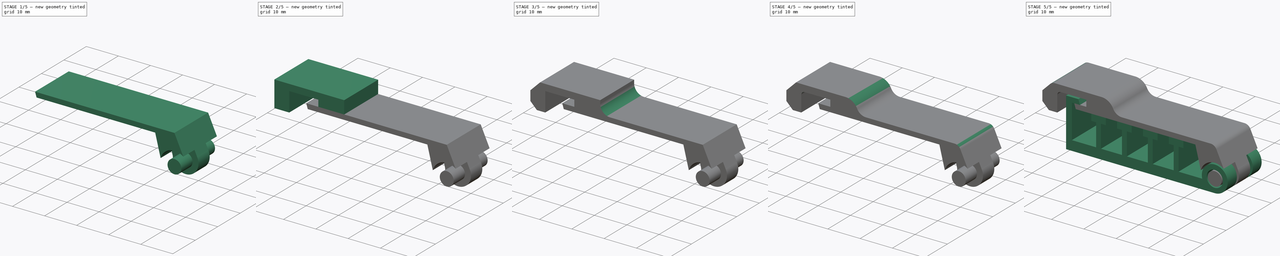
[diagram: build sequence overview — one tinted view per stage of 5, left to right]
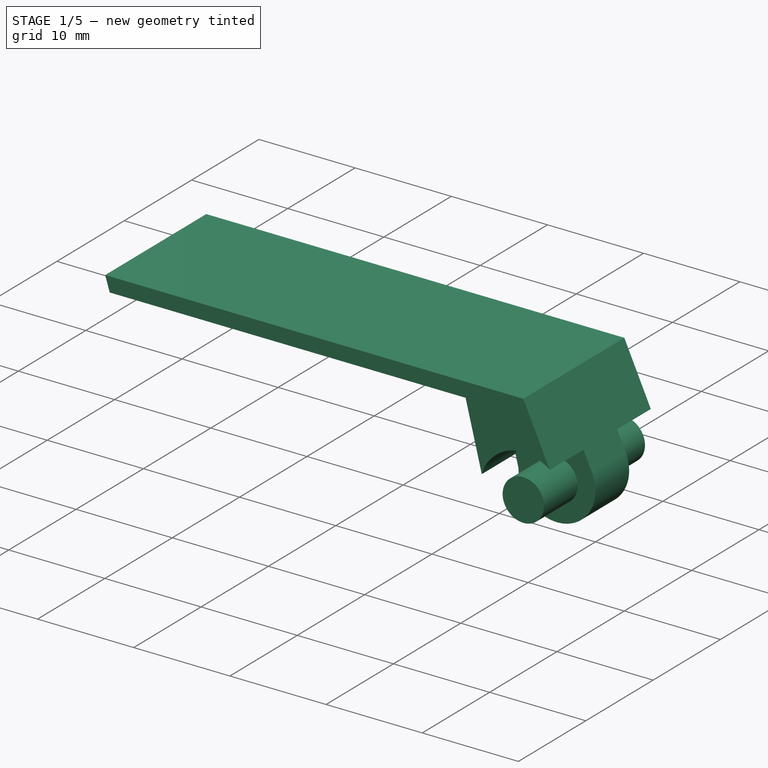
[diagram: stage 1 of 5 — iso view after this stage's code; geometry added in this stage tinted green]
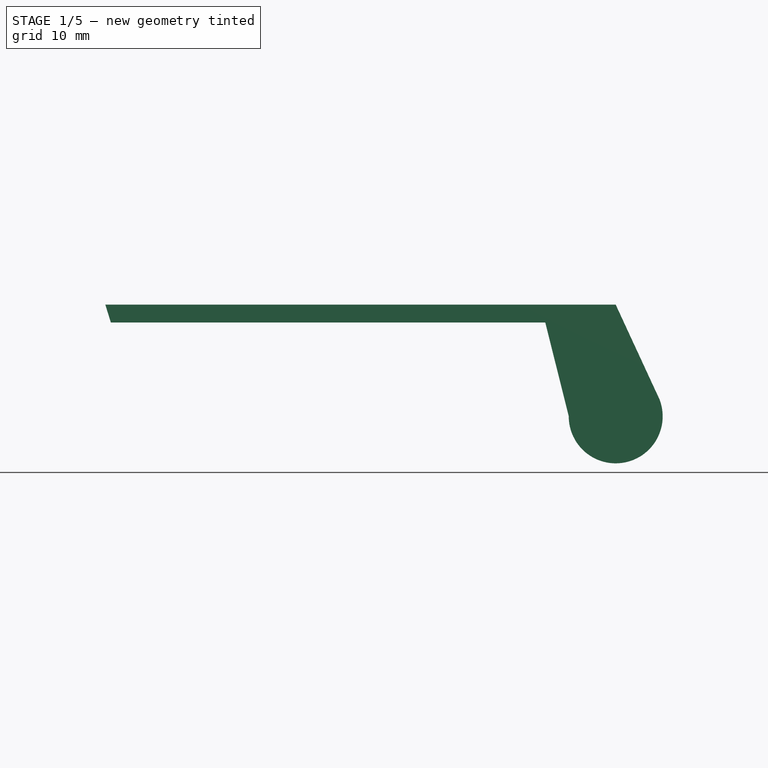
[diagram: stage 1 of 5 — front view after this stage's code; geometry added in this stage tinted green]
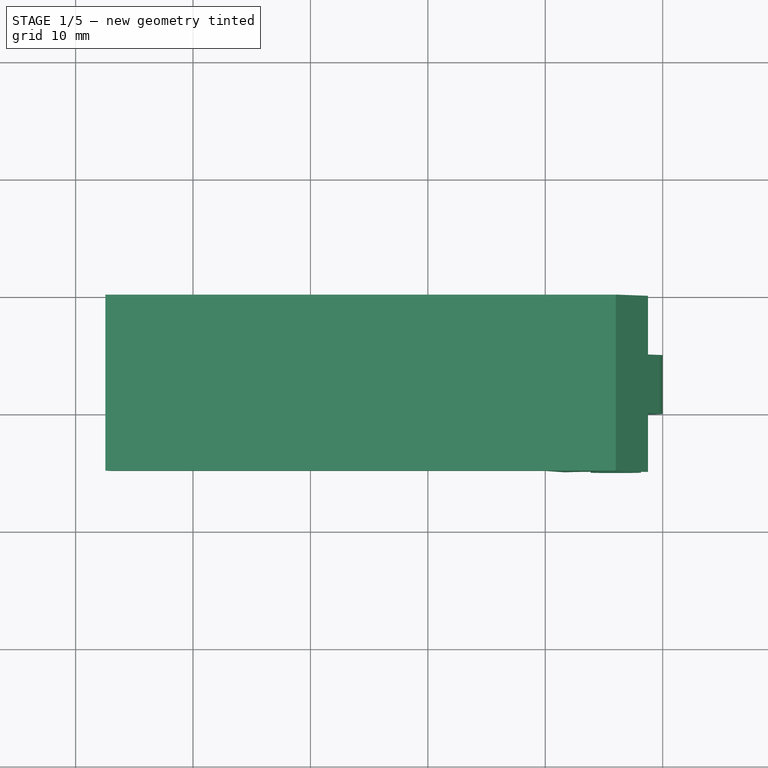
[diagram: stage 1 of 5 — top view after this stage's code; geometry added in this stage tinted green]
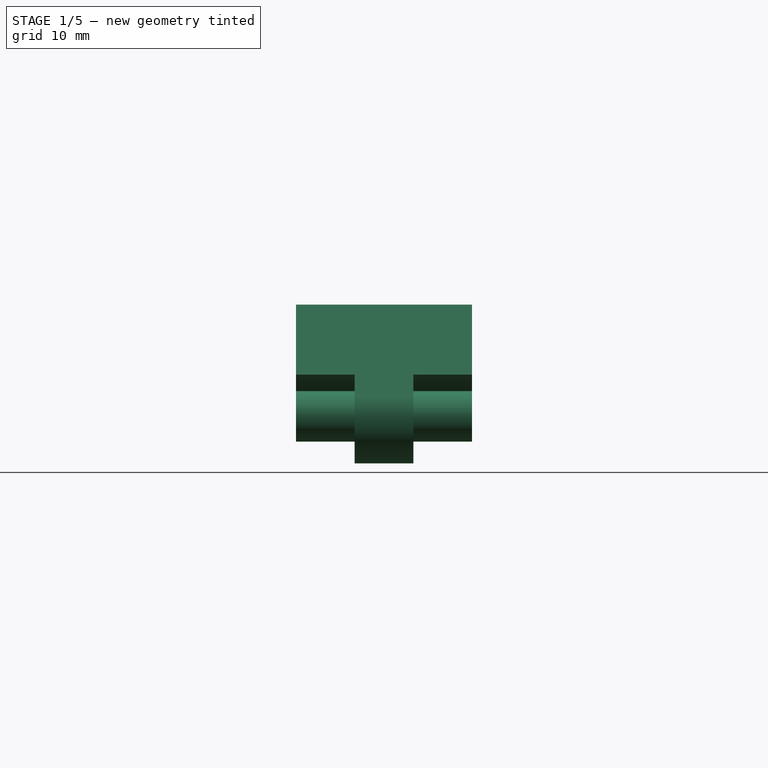
[diagram: stage 1 of 5 — right view after this stage's code; geometry added in this stage tinted green]
FCSTD DOCUMENT  (FreeCAD 1.1R20260325 (Git shallow))
Label: cable comb x5
License: All rights reserved
LicenseURL: https://en.wikipedia.org/wiki/All_rights_reserved
objects: Sketcher::SketchObject×8, PartDesign::Pad×5, PartDesign::Fillet×5, PartDesign::Pocket×3, PartDesign::Body×2, App::Point×2, PartDesign::Chamfer×2, PartDesign::ShapeBinder×1
note: 64 computed .brp shape members not serialized (recipe doc carries the construction recipe); baked Part::Feature solids carry a one-line shape summary decoded from their .brp

FEATURE [PartDesign::Body] Body
  AllowCompound = false
  Group = -> [Sketch,Pad,Sketch001,Pocket]
  Origin = -> Origin
  Tip = -> Pocket
FEATURE [PartDesign::ShapeBinder] CopyPocket
  Placement = pos=(0,-15,3.3e-15) rot=(0,0,1;0rad)
  TraceSupport = false
FEATURE [Sketcher::SketchObject] Sketch002
  ArcFitTolerance = 1e-06
  AttachmentSupport = -> [CopyPocket]
  ExternalTypes = [0]
  FullyConstrained = false
  MakeInternals = false
  MapMode = 5
  Placement = pos=(0,-15,3.3e-15) rot=(1,0,0;1.5708rad)
  _ExternalGeoVersion = 0
  sketch-geometry (6):
    g0: ArcOfCircle CenterX=-4 CenterY=4 CenterZ=0 NormalX=0 NormalY=0 NormalZ=1 AngleXU=0 Radius=4 StartAngle=3.1379 EndAngle=6.77347
    g1: LineSegment StartX=-7.99997 StartY=4.01475 StartZ=0 EndX=-10 EndY=12 EndZ=0
    g2: LineSegment StartX=-10 StartY=12 StartZ=0 EndX=-47 EndY=12 EndZ=0
    g3: LineSegment StartX=-47 StartY=12 StartZ=0 EndX=-47.4698 EndY=13.5143 EndZ=0
    g4: LineSegment StartX=-47.4698 StartY=13.5143 StartZ=0 EndX=-4 EndY=13.5143 EndZ=0
    g5: LineSegment StartX=-4 StartY=13.5143 StartZ=0 EndX=-0.471207 EndY=5.88351 EndZ=0
  constraints (9):
    c: Diameter(g0) = 8
    c: Coincident(g2,g1)
    c: Horizontal(g2)
    c: Coincident(g3,g2)
    c: Coincident(g4,g3)
    c: Coincident(g5,g4)
    c: Horizontal(g4)
    c: Coincident(g0,g5)
    c: Coincident(g0,g1)
FEATURE [PartDesign::Pad] Pad001
  Direction = (0,-1,2e-16)
  Length = 15
  Length2 = 10
  Placement = pos=(0,-15,3.3e-15) rot=(0,0,1;0rad)
  Profile = -> Sketch002
  ReferenceAxis = -> Sketch002 [N_Axis]
  Refine = true
  Reversed = true
  SideType = 0
  Suppressed = false
  Type = 0
  Type2 = 0
FEATURE [Sketcher::SketchObject] Sketch003
  ArcFitTolerance = 1e-06
  AttachmentSupport = -> [Pad001]
  ExternalTypes = [0]
  FullyConstrained = false
  MakeInternals = false
  MapMode = 5
  Placement = pos=(0,-15,3.3e-15) rot=(1,0,0;1.5708rad)
  _ExternalGeoVersion = 0
  sketch-geometry (2):
    g0: Circle CenterX=-4 CenterY=4 CenterZ=0 NormalX=0 NormalY=0 NormalZ=1 AngleXU=0 Radius=2.15
    g1: Circle CenterX=-4 CenterY=4 CenterZ=0 NormalX=0 NormalY=0 NormalZ=1 AngleXU=0 Radius=4.5
  constraints (3):
    c: Diameter(g0) = 4.3
    c: Coincident(g1,g0)
    c: Diameter(g1) = 9
FEATURE [PartDesign::Pocket] Pocket001
  BaseFeature = -> Pad001
  Direction = (0,1,-2e-16)
  Length = 5
  Length2 = 5
  Placement = pos=(0,-15,3.3e-15) rot=(0,0,1;0rad)
  Profile = -> Sketch003
  ReferenceAxis = -> Sketch003 [N_Axis]
  Refine = true
  SideType = 0
  Suppressed = false
  Type = 0
  Type2 = 0
FEATURE [Sketcher::SketchObject] Sketch004
  ArcFitTolerance = 1e-06
  AttachmentSupport = -> [Pocket001]
  ExternalTypes = [0]
  FullyConstrained = false
  MakeInternals = false
  MapMode = 5
  Placement = pos=(0,0,-1e-16) rot=(0,0.707107,0.707107;3.14159rad)
  _ExternalGeoVersion = 0
  sketch-geometry (2):
    g0: Circle CenterX=4 CenterY=4 CenterZ=0 NormalX=0 NormalY=0 NormalZ=1 AngleXU=0 Radius=2.15
    g1: Circle CenterX=4 CenterY=4 CenterZ=0 NormalX=0 NormalY=0 NormalZ=1 AngleXU=0 Radius=4.5
  constraints (3):
    c: Diameter(g0) = 4.3
    c: Diameter(g1) = 9
    c: Coincident(g1,g0)
FEATURE [PartDesign::Pocket] Pocket002
  BaseFeature = -> Pocket001
  Direction = (0,-1,2e-16)
  Length = 5
  Length2 = 5
  Placement = pos=(0,-15,3.3e-15) rot=(0,0,1;0rad)
  Profile = -> Sketch004
  ReferenceAxis = -> Sketch004 [N_Axis]
  Refine = true
  SideType = 0
  Suppressed = false
  Type = 0
  Type2 = 0
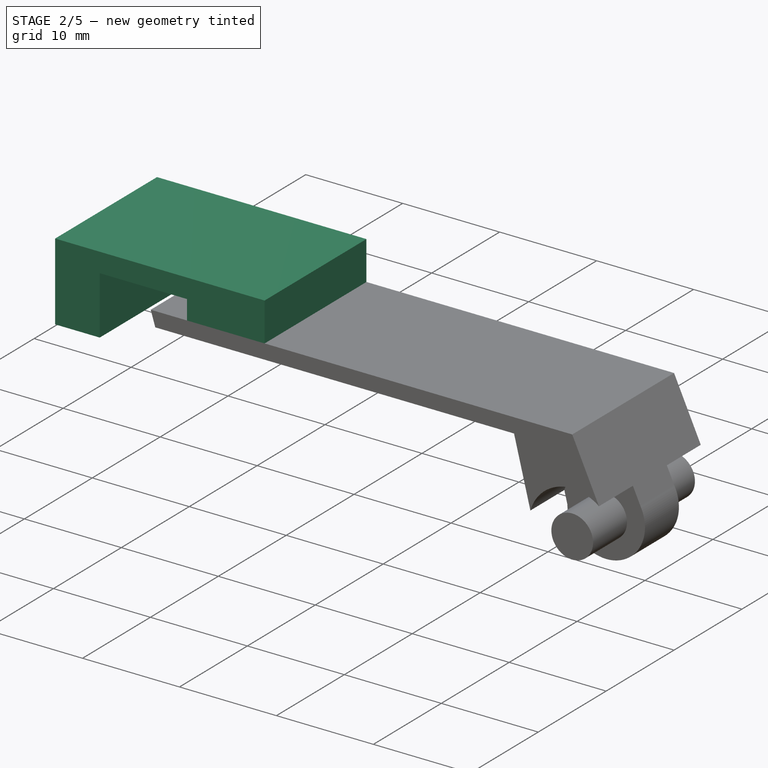
[diagram: stage 2 of 5 — iso view after this stage's code; geometry added in this stage tinted green]
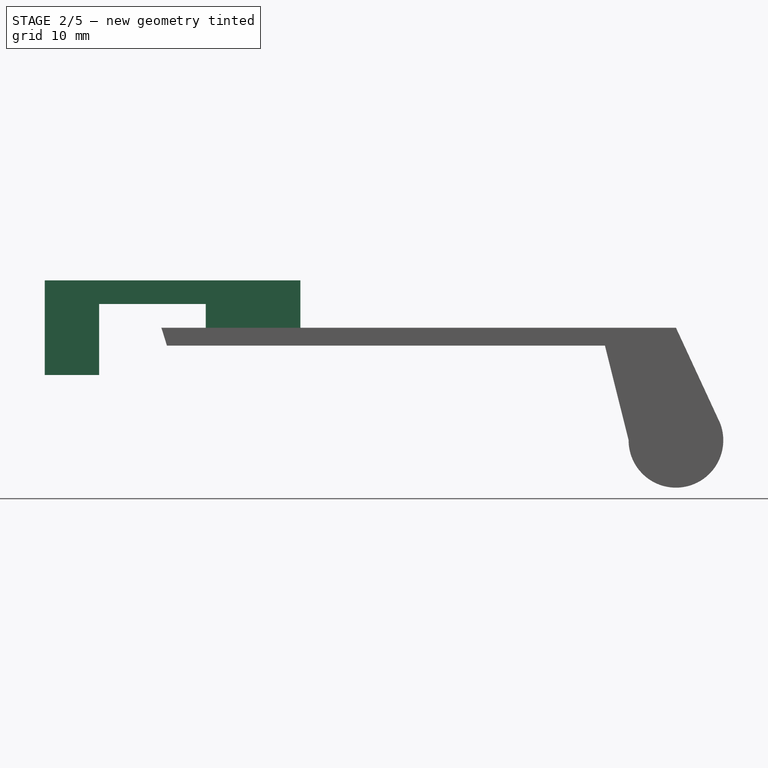
[diagram: stage 2 of 5 — front view after this stage's code; geometry added in this stage tinted green]
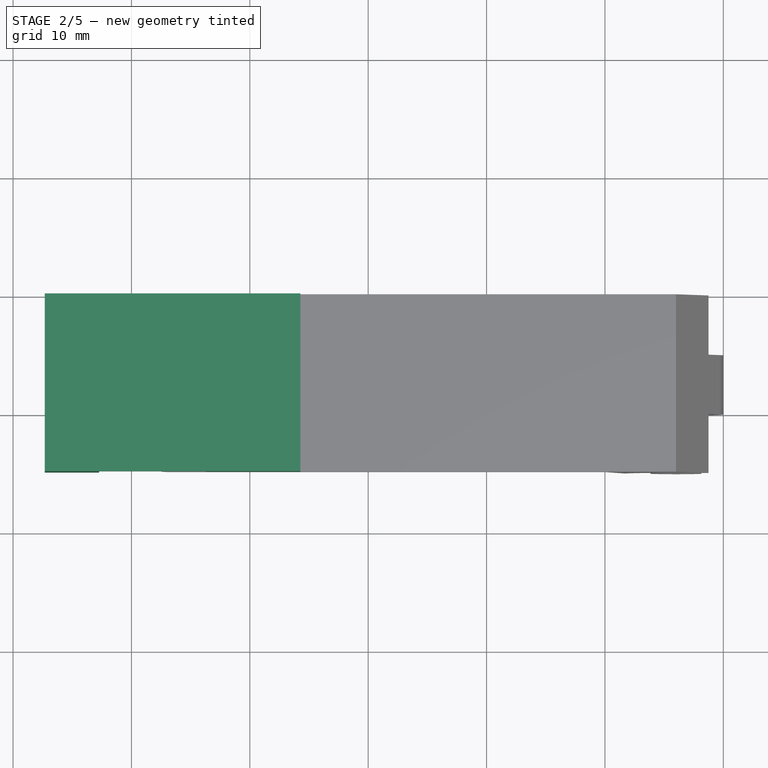
[diagram: stage 2 of 5 — top view after this stage's code; geometry added in this stage tinted green]
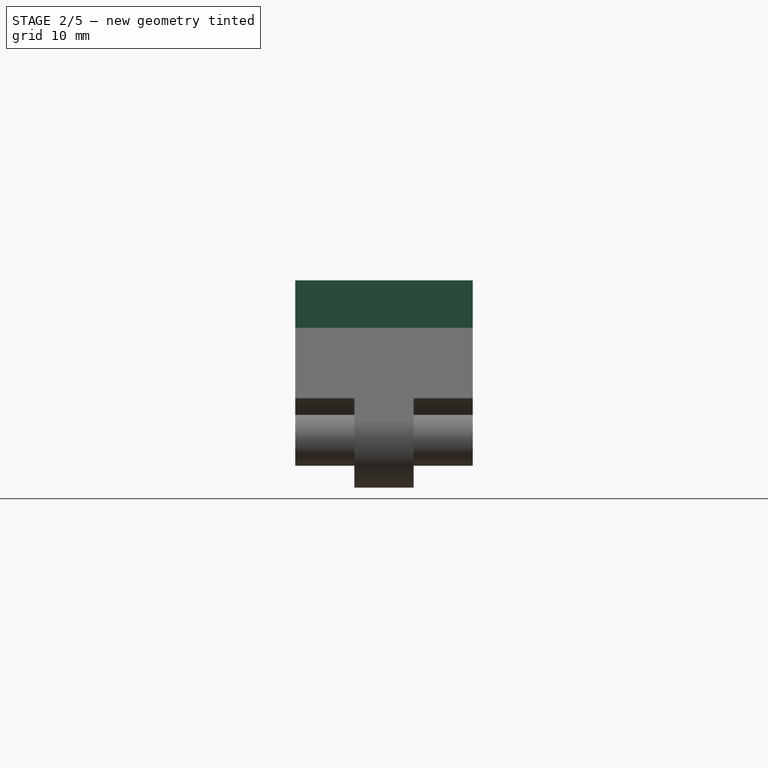
[diagram: stage 2 of 5 — right view after this stage's code; geometry added in this stage tinted green]
FEATURE [App::Point] Origin002  label="Origin"
  Role = Origin
FEATURE [App::Point] Origin003  label="Origin"
  Role = Origin
FEATURE [Sketcher::SketchObject] Sketch005
  ArcFitTolerance = 1e-06
  AttachmentSupport = -> [Pocket002]
  ExternalTypes = [0]
  FullyConstrained = false
  MakeInternals = false
  MapMode = 5
  Placement = pos=(0,-15,13.5143) rot=(0,0,1;0rad)
  _ExternalGeoVersion = 1
  sketch-geometry (4):
    g0: LineSegment StartX=-35.7267 StartY=0 StartZ=0 EndX=-35.7267 EndY=15 EndZ=0
    g1: LineSegment StartX=-35.7267 StartY=15 StartZ=0 EndX=-43.7267 EndY=15 EndZ=0
    g2: LineSegment StartX=-43.7267 StartY=15 StartZ=0 EndX=-43.7267 EndY=0 EndZ=0
    g3: LineSegment StartX=-43.7267 StartY=0 StartZ=0 EndX=-35.7267 EndY=0 EndZ=0
  constraints (11):
    c: Coincident(g0,g1)
    c: Coincident(g1,g2)
    c: Coincident(g2,g3)
    c: Coincident(g3,g0)
    c: Vertical(g0)
    c: Vertical(g2)
    c: Horizontal(g1)
    c: Horizontal(g3)
    c: Distance(g0,g2) = 8
    c: Distance(g1,g3) = 15
    c: PointOnObject(g0,g-1)
FEATURE [PartDesign::Pad] Pad002
  BaseFeature = -> Pocket002
  Direction = (0,0,1)
  Length = 4
  Length2 = 10
  Placement = pos=(0,-15,3.3e-15) rot=(0,0,1;0rad)
  Profile = -> Sketch005
  ReferenceAxis = -> Sketch005 [N_Axis]
  Refine = true
  SideType = 0
  Suppressed = false
  Type = 0
  Type2 = 0
FEATURE [Sketcher::SketchObject] Sketch006
  ArcFitTolerance = 1e-06
  AttachmentSupport = -> [Pad002]
  ExternalGeometry = -> [Pad002]
  ExternalTypes = [1]
  FullyConstrained = true
  MakeInternals = false
  MapMode = 5
  Placement = pos=(-43.7267,-15,3.3e-15) rot=(0.57735,-0.57735,-0.57735;2.0944rad)
  _ExternalGeoVersion = 1
  sketch-geometry (4):
    g0: LineSegment StartX=-15 StartY=17.5143 StartZ=0 EndX=-15 EndY=15.5143 EndZ=0
    g1: LineSegment StartX=-15 StartY=15.5143 StartZ=0 EndX=-3.6e-15 EndY=15.5143 EndZ=0
    g2: LineSegment StartX=-3.6e-15 StartY=15.5143 StartZ=0 EndX=-3.6e-15 EndY=17.5143 EndZ=0
    g3: LineSegment StartX=-3.6e-15 StartY=17.5143 StartZ=0 EndX=-15 EndY=17.5143 EndZ=0
  constraints (11):
    c: Coincident(g0,g1)
    c: Coincident(g1,g2)
    c: Coincident(g2,g3)
    c: Coincident(g3,g0)
    c: Vertical(g0)
    c: Vertical(g2)
    c: Horizontal(g1)
    c: Horizontal(g3)
    c: Distance(g0,g2) = 15
    c: Distance(g1,g3) = 2
    c: Coincident(g-3,g2)
FEATURE [PartDesign::Pad] Pad003
  BaseFeature = -> Pad002
  Direction = (-1,0,0)
  Length = 9
  Length2 = 10
  Placement = pos=(0,-15,3.3e-15) rot=(0,0,1;0rad)
  Profile = -> Sketch006
  ReferenceAxis = -> Sketch006 [N_Axis]
  Refine = true
  SideType = 0
  Suppressed = false
  Type = 0
  Type2 = 0
FEATURE [Sketcher::SketchObject] Sketch007
  ArcFitTolerance = 1e-06
  AttachmentSupport = -> [Pad003]
  ExternalGeometry = -> [Pad003]
  ExternalTypes = [1,1]
  FullyConstrained = true
  MakeInternals = false
  MapMode = 5
  Placement = pos=(-52.7267,-15,3.3e-15) rot=(0.57735,-0.57735,-0.57735;2.0944rad)
  _ExternalGeoVersion = 1
  sketch-geometry (4):
    g0: LineSegment StartX=-15 StartY=17.5143 StartZ=0 EndX=-15 EndY=9.5143 EndZ=0
    g1: LineSegment StartX=-15 StartY=9.5143 StartZ=0 EndX=-3.6e-15 EndY=9.5143 EndZ=0
    g2: LineSegment StartX=-3.6e-15 StartY=9.5143 StartZ=0 EndX=-3.6e-15 EndY=17.5143 EndZ=0
    g3: LineSegment StartX=-3.6e-15 StartY=17.5143 StartZ=0 EndX=-15 EndY=17.5143 EndZ=0
  constraints (11):
    c: Coincident(g0,g1)
    c: Coincident(g1,g2)
    c: Coincident(g2,g3)
    c: Coincident(g3,g0)
    c: Vertical(g0)
    c: Vertical(g2)
    c: Horizontal(g1)
    c: Horizontal(g3)
    c: Distance(g0,g2) = 15
    c: Distance(g1,g3) = 8
    c: Coincident(g-4,g2)
FEATURE [PartDesign::Pad] Pad004
  BaseFeature = -> Pad003
  Direction = (-1,0,0)
  Length = 4.6
  Length2 = 10
  Placement = pos=(0,-15,3.3e-15) rot=(0,0,1;0rad)
  Profile = -> Sketch007
  ReferenceAxis = -> Sketch007 [N_Axis]
  Refine = true
  SideType = 0
  Suppressed = false
  Type = 0
  Type2 = 0
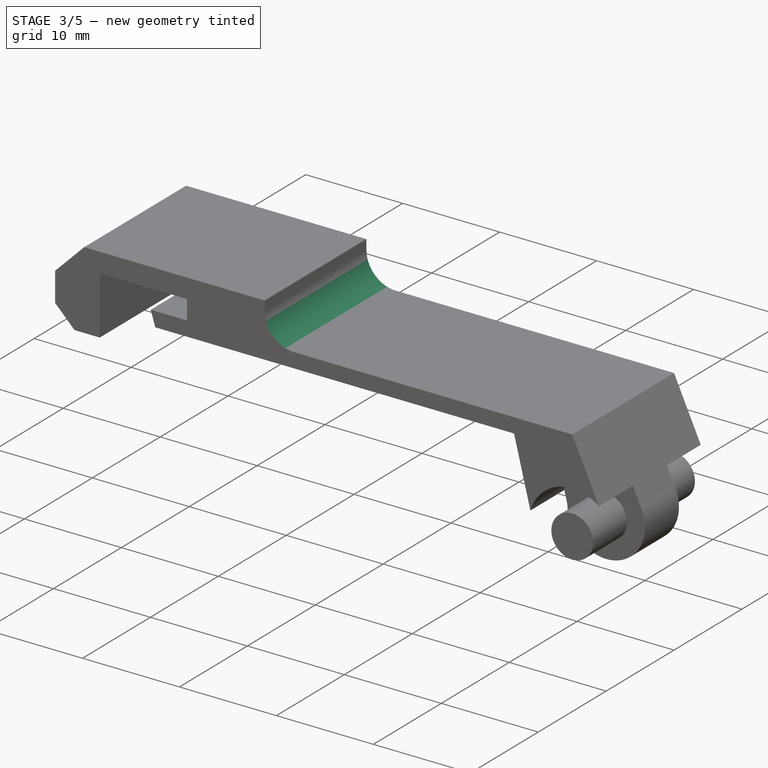
[diagram: stage 3 of 5 — iso view after this stage's code; geometry added in this stage tinted green]
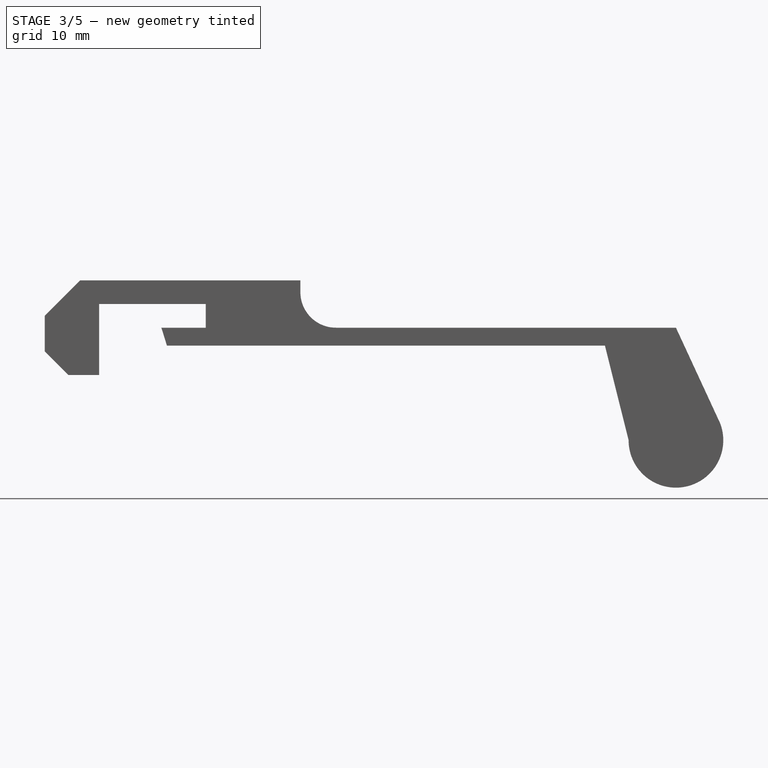
[diagram: stage 3 of 5 — front view after this stage's code; geometry added in this stage tinted green]
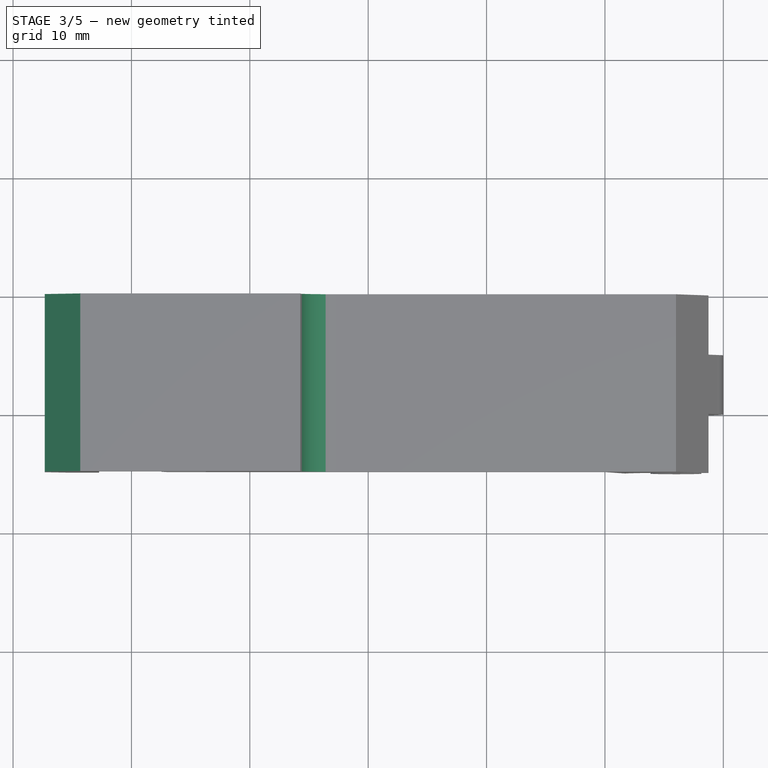
[diagram: stage 3 of 5 — top view after this stage's code; geometry added in this stage tinted green]
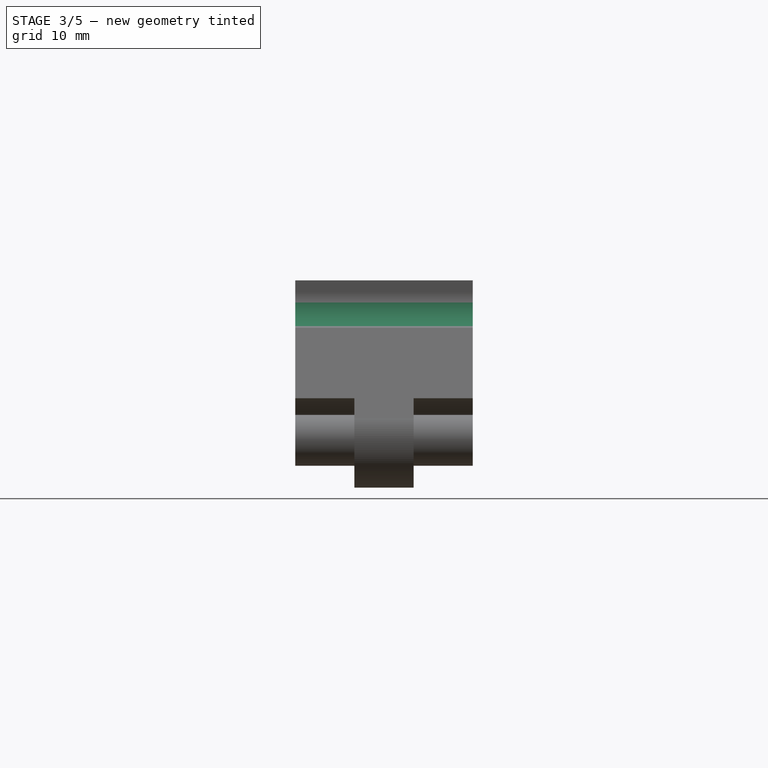
[diagram: stage 3 of 5 — right view after this stage's code; geometry added in this stage tinted green]
FEATURE [PartDesign::Chamfer] Chamfer
  Angle = 45
  Base = -> Pad004 [Edge58]
  BaseFeature = -> Pad004
  ChamferType = 0
  FlipDirection = false
  Placement = pos=(0,-15,3.3e-15) rot=(0,0,1;0rad)
  Refine = true
  Size = 3
  Size2 = 1
  SupportTransform = false
  Suppressed = false
  UseAllEdges = false
  expr: Size = 3 mm
FEATURE [PartDesign::Chamfer] Chamfer001
  Angle = 45
  Base = -> Chamfer [Edge3]
  BaseFeature = -> Chamfer
  ChamferType = 0
  FlipDirection = false
  Placement = pos=(0,-15,3.3e-15) rot=(0,0,1;0rad)
  Refine = true
  Size = 2
  Size2 = 1
  SupportTransform = false
  Suppressed = false
  UseAllEdges = false
FEATURE [PartDesign::Fillet] Fillet
  Base = -> Chamfer001 [Edge40]
  BaseFeature = -> Chamfer001
  Placement = pos=(0,-15,3.3e-15) rot=(0,0,1;0rad)
  Radius = 3
  Refine = true
  SupportTransform = false
  Suppressed = false
  UseAllEdges = false
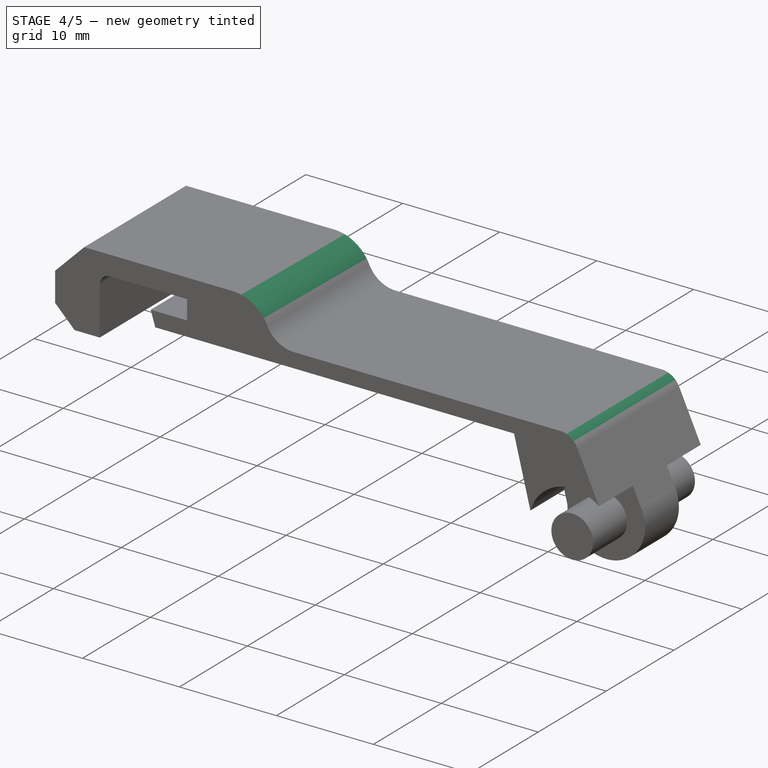
[diagram: stage 4 of 5 — iso view after this stage's code; geometry added in this stage tinted green]
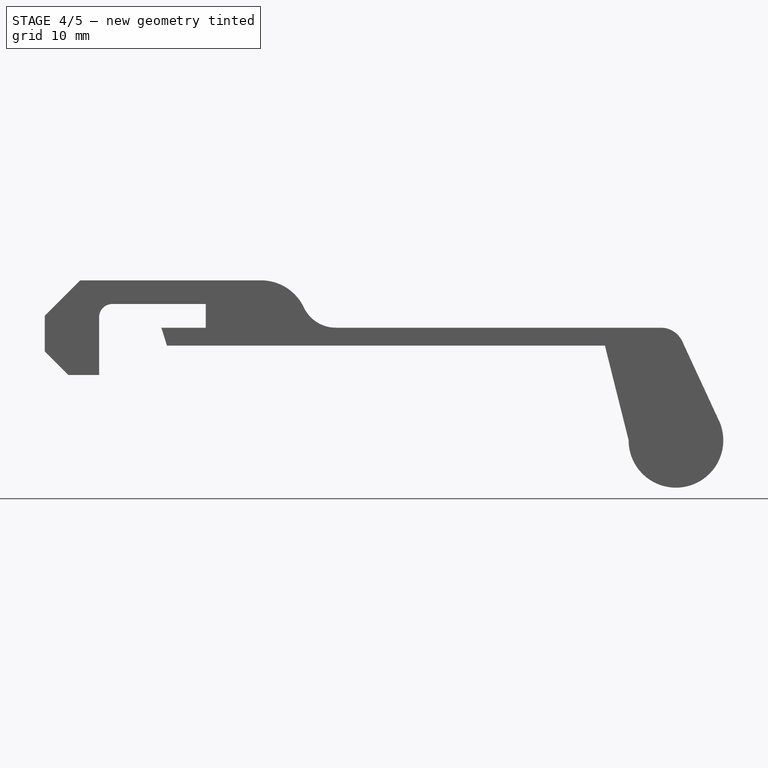
[diagram: stage 4 of 5 — front view after this stage's code; geometry added in this stage tinted green]
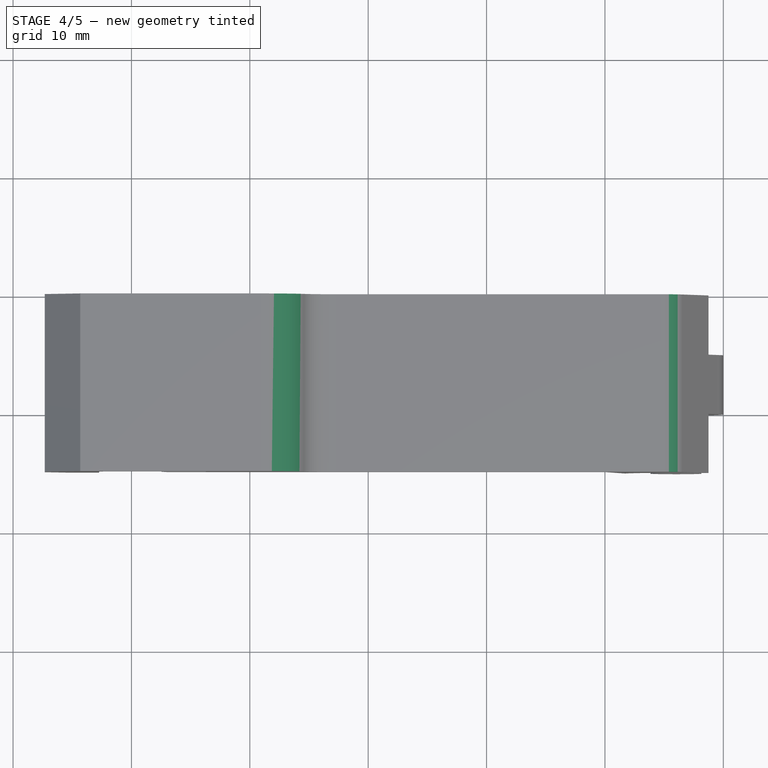
[diagram: stage 4 of 5 — top view after this stage's code; geometry added in this stage tinted green]
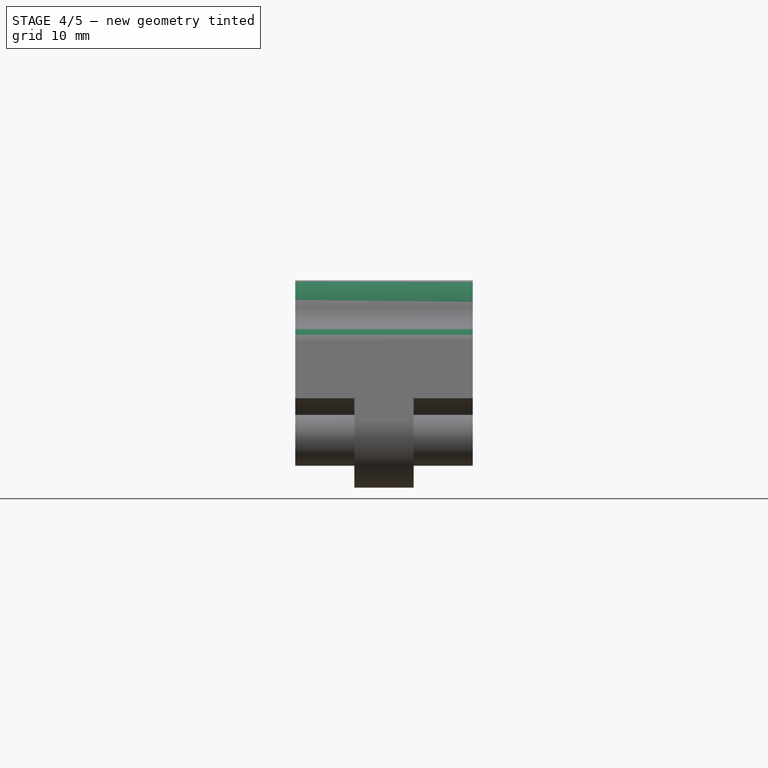
[diagram: stage 4 of 5 — right view after this stage's code; geometry added in this stage tinted green]
FEATURE [PartDesign::Fillet] Fillet001
  Base = -> Fillet [Edge20]
  BaseFeature = -> Fillet
  Placement = pos=(0,-15,3.3e-15) rot=(0,0,1;0rad)
  Radius = 4
  Refine = true
  SupportTransform = false
  Suppressed = false
  UseAllEdges = false
FEATURE [PartDesign::Fillet] Fillet002
  Base = -> Fillet001 [Edge54]
  BaseFeature = -> Fillet001
  Placement = pos=(0,-15,3.3e-15) rot=(0,0,1;0rad)
  Radius = 1.1
  Refine = true
  SupportTransform = false
  Suppressed = false
  UseAllEdges = false
FEATURE [PartDesign::Fillet] Fillet003
  Base = -> Fillet002 [Edge57]
  BaseFeature = -> Fillet002
  Placement = pos=(0,-15,3.3e-15) rot=(0,0,1;0rad)
  Radius = 2
  Refine = true
  SupportTransform = false
  Suppressed = false
  UseAllEdges = false
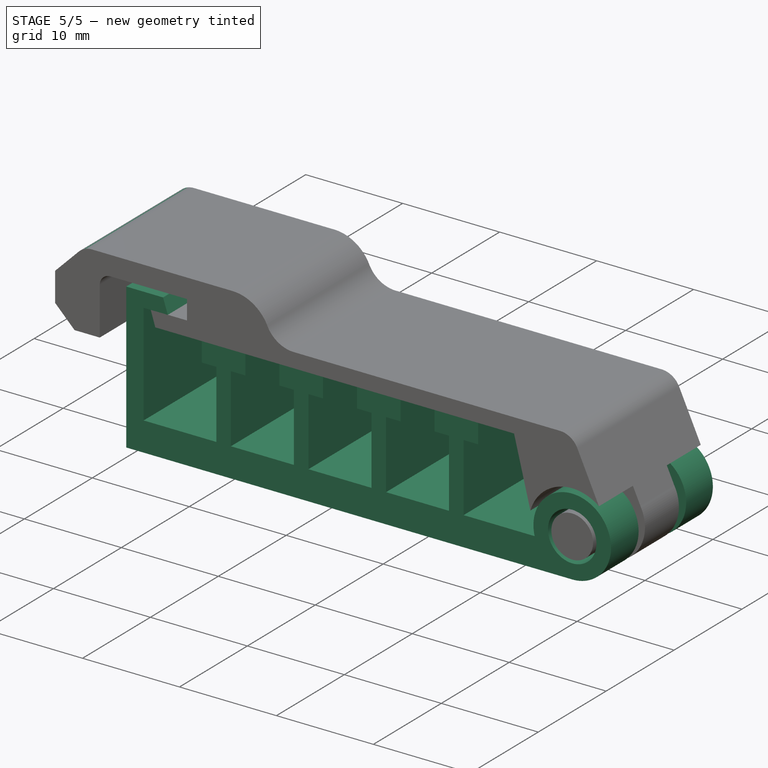
[diagram: stage 5 of 5 — iso view after this stage's code; geometry added in this stage tinted green]
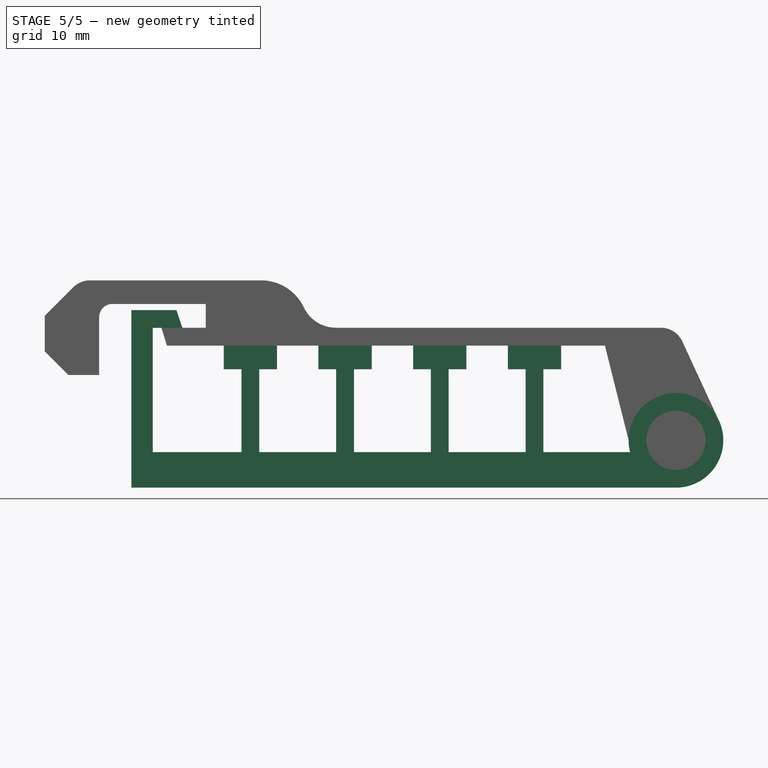
[diagram: stage 5 of 5 — front view after this stage's code; geometry added in this stage tinted green]
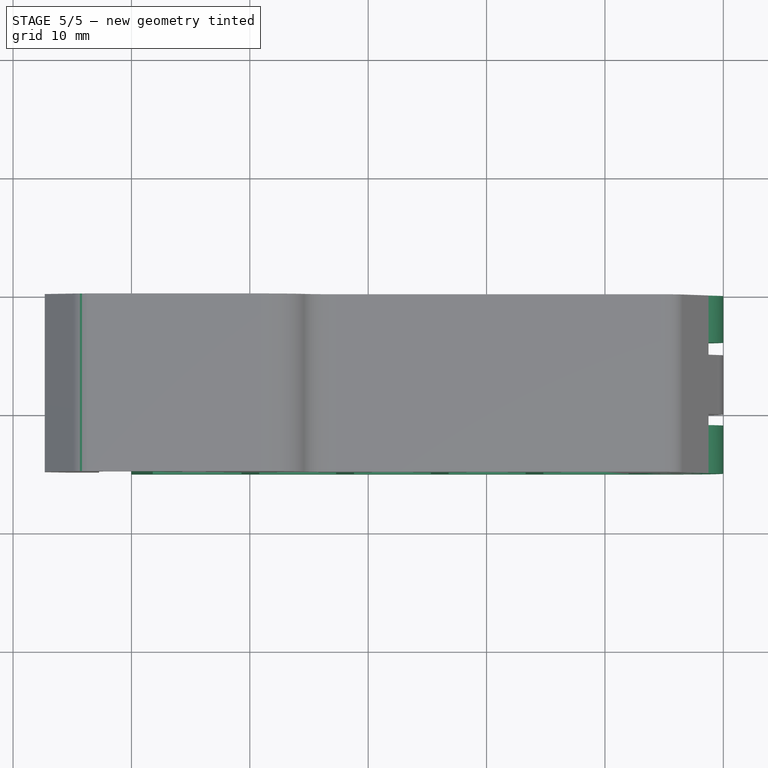
[diagram: stage 5 of 5 — top view after this stage's code; geometry added in this stage tinted green]
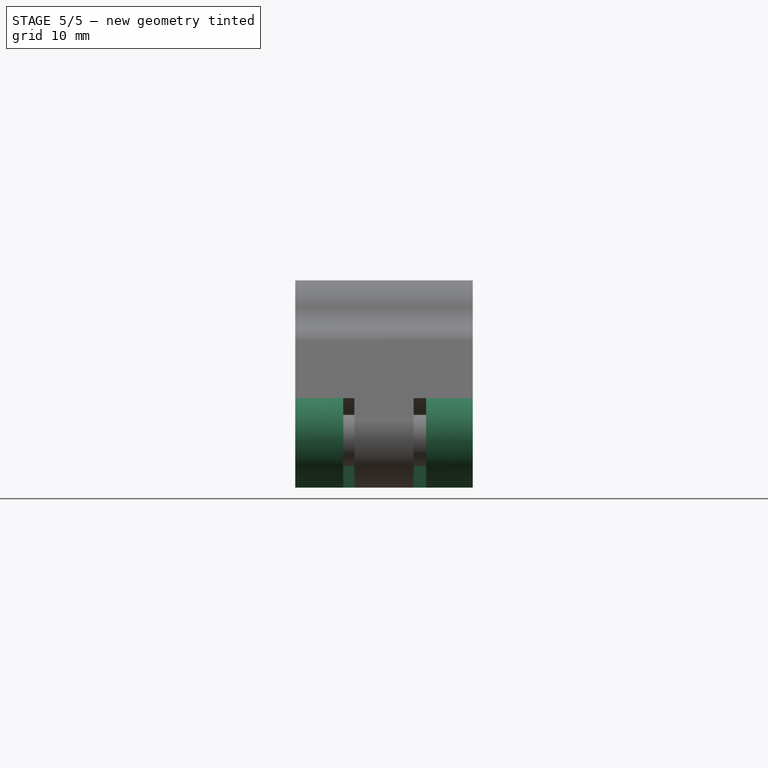
[diagram: stage 5 of 5 — right view after this stage's code; geometry added in this stage tinted green]
FEATURE [Sketcher::SketchObject] Sketch
  ArcFitTolerance = 1e-06
  AttachmentSupport = -> [XZ_Plane]
  ExternalTypes = [0]
  FullyConstrained = false
  MakeInternals = false
  MapMode = 5
  Placement = pos=(0,0,0) rot=(1,0,0;1.5708rad)
  _ExternalGeoVersion = 0
  sketch-geometry (45):
    g0: LineSegment [constr] StartX=0 StartY=0 StartZ=0 EndX=0 EndY=15 EndZ=0
    g1: LineSegment [constr] StartX=0 StartY=15 StartZ=0 EndX=-50 EndY=15 EndZ=0
    g2: LineSegment [constr] StartX=-50 StartY=15 StartZ=0 EndX=-50 EndY=0 EndZ=0
    g3: LineSegment [constr] StartX=-50 StartY=0 StartZ=0 EndX=0 EndY=0 EndZ=0
    g4: LineSegment StartX=-4 StartY=0 StartZ=0 EndX=-50 EndY=0 EndZ=0
    g5: LineSegment StartX=-50 StartY=0 StartZ=0 EndX=-50 EndY=15 EndZ=0
    g6: LineSegment StartX=-50 StartY=15 StartZ=0 EndX=-46.2 EndY=15 EndZ=0
    g7: LineSegment StartX=-46.2 StartY=15 StartZ=0 EndX=-45.7 EndY=13.5 EndZ=0
    g8: LineSegment StartX=-45.7 StartY=13.5 StartZ=0 EndX=-48.2 EndY=13.5 EndZ=0
    g9: LineSegment StartX=-48.2 StartY=3 StartZ=0 EndX=-40.7026 EndY=3 EndZ=0
    g10: ArcOfCircle CenterX=-4 CenterY=4 CenterZ=0 NormalX=0 NormalY=0 NormalZ=1 AngleXU=0 Radius=4 StartAngle=4.71239 EndAngle=9.67746
    g11: LineSegment StartX=-15.2026 StartY=3 StartZ=0 EndX=-7.87298 EndY=3 EndZ=0
    g12: Circle CenterX=-4 CenterY=4 CenterZ=0 NormalX=0 NormalY=0 NormalZ=1 AngleXU=0 Radius=2.5
    g13: LineSegment StartX=-48.2 StartY=13.5 StartZ=0 EndX=-48.2 EndY=3 EndZ=0
    g14: LineSegment StartX=-40.7026 StartY=3 StartZ=0 EndX=-40.7026 EndY=10 EndZ=0
    g15: LineSegment StartX=-40.7026 StartY=10 StartZ=0 EndX=-42.2026 EndY=10 EndZ=0
    g16: LineSegment StartX=-42.2026 StartY=12 StartZ=0 EndX=-37.7026 EndY=12 EndZ=0
    g17: LineSegment StartX=-37.7026 StartY=10 StartZ=0 EndX=-39.2026 EndY=10 EndZ=0
    g18: LineSegment StartX=-39.2026 StartY=10 StartZ=0 EndX=-39.2026 EndY=3 EndZ=0
    g19: LineSegment StartX=-32.7026 StartY=3 StartZ=0 EndX=-32.7026 EndY=10 EndZ=0
    g20: LineSegment StartX=-32.7026 StartY=10 StartZ=0 EndX=-34.2026 EndY=10 EndZ=0
    g21: LineSegment StartX=-34.2026 StartY=12 StartZ=0 EndX=-29.7026 EndY=12 EndZ=0
    g22: LineSegment StartX=-29.7026 StartY=10 StartZ=0 EndX=-31.2026 EndY=10 EndZ=0
    g23: LineSegment StartX=-31.2026 StartY=10 StartZ=0 EndX=-31.2026 EndY=3 EndZ=0
    g24: LineSegment StartX=-24.7026 StartY=3 StartZ=0 EndX=-24.7026 EndY=10 EndZ=0
    g25: LineSegment StartX=-24.7026 StartY=10 StartZ=0 EndX=-26.2026 EndY=10 EndZ=0
    g26: LineSegment StartX=-26.2026 StartY=12 StartZ=0 EndX=-21.7026 EndY=12 EndZ=0
    g27: LineSegment StartX=-21.7026 StartY=10 StartZ=0 EndX=-23.2026 EndY=10 EndZ=0
    g28: LineSegment StartX=-23.2026 StartY=10 StartZ=0 EndX=-23.2026 EndY=3 EndZ=0
    g29: LineSegment StartX=-16.7026 StartY=3 StartZ=0 EndX=-16.7026 EndY=10 EndZ=0
    g30: LineSegment StartX=-16.7026 StartY=10 StartZ=0 EndX=-18.2026 EndY=10 EndZ=0
    g31: LineSegment StartX=-18.2026 StartY=12 StartZ=0 EndX=-13.7026 EndY=12 EndZ=0
    g32: LineSegment StartX=-13.7026 StartY=10 StartZ=0 EndX=-15.2026 EndY=10 EndZ=0
    g33: LineSegment StartX=-15.2026 StartY=10 StartZ=0 EndX=-15.2026 EndY=3 EndZ=0
    g34: LineSegment StartX=-31.2026 StartY=3 StartZ=0 EndX=-24.7026 EndY=3 EndZ=0
    g35: LineSegment StartX=-23.2026 StartY=3 StartZ=0 EndX=-16.7026 EndY=3 EndZ=0
    g36: LineSegment StartX=-39.2026 StartY=3 StartZ=0 EndX=-32.7026 EndY=3 EndZ=0
    g37: LineSegment StartX=-42.2026 StartY=10 StartZ=0 EndX=-42.2026 EndY=12 EndZ=0
    g38: LineSegment StartX=-34.2026 StartY=10 StartZ=0 EndX=-34.2026 EndY=12 EndZ=0
    g39: LineSegment StartX=-26.2026 StartY=10 StartZ=0 EndX=-26.2026 EndY=12 EndZ=0
    g40: LineSegment StartX=-18.2026 StartY=10 StartZ=0 EndX=-18.2026 EndY=12 EndZ=0
    g41: LineSegment StartX=-37.7026 StartY=12 StartZ=0 EndX=-37.7026 EndY=10 EndZ=0
    g42: LineSegment StartX=-29.7026 StartY=12 StartZ=0 EndX=-29.7026 EndY=10 EndZ=0
    g43: LineSegment StartX=-21.7026 StartY=12 StartZ=0 EndX=-21.7026 EndY=10 EndZ=0
    g44: LineSegment StartX=-13.7026 StartY=12 StartZ=0 EndX=-13.7026 EndY=10 EndZ=0
  constraints (24):
    c: Coincident(g12,g10)
    c: Coincident(g13,g9)
    c: Coincident(g13,g8)
    c: Coincident(g1,g5)
    c: Coincident(g2,g6)
    c: Coincident(g4,g5)
    c: Coincident(g33,g11)
    c: Coincident(g14,g9)
    c: Coincident(g37,g15)
    c: Coincident(g37,g16)
    c: Coincident(g38,g20)
    c: Coincident(g38,g21)
    c: Coincident(g39,g26)
    c: Coincident(g39,g25)
    c: Coincident(g40,g30)
    c: Coincident(g40,g31)
    c: Coincident(g41,g16)
    c: Coincident(g41,g17)
    c: Coincident(g42,g21)
    c: Coincident(g42,g22)
    c: Coincident(g43,g26)
    c: Coincident(g43,g27)
    c: Coincident(g44,g31)
    c: Coincident(g44,g32)
FEATURE [PartDesign::Pad] Pad
  Direction = (0,-1,2e-16)
  Length = 15
  Length2 = 10
  Placement = pos=(0,0,0) rot=(1,0,0;1.5708rad)
  Profile = -> Sketch
  ReferenceAxis = -> Sketch [N_Axis]
  Refine = true
  SideType = 0
  Suppressed = false
  Type = 0
  Type2 = 0
FEATURE [Sketcher::SketchObject] Sketch001
  ArcFitTolerance = 1e-06
  AttachmentSupport = -> [Pad]
  ExternalTypes = [0]
  FullyConstrained = false
  MakeInternals = false
  MapMode = 5
  Placement = pos=(0,0,0) rot=(1,0,0;3.14159rad)
  _ExternalGeoVersion = 0
  sketch-geometry (4):
    g0: LineSegment StartX=0 StartY=10.9377 StartZ=0 EndX=-8 EndY=10.9377 EndZ=0
    g1: LineSegment StartX=-8 StartY=10.9377 StartZ=0 EndX=-8 EndY=3.93773 EndZ=0
    g2: LineSegment StartX=-8 StartY=3.93773 StartZ=0 EndX=0 EndY=3.93773 EndZ=0
    g3: LineSegment StartX=0 StartY=3.93773 StartZ=0 EndX=0 EndY=10.9377 EndZ=0
  constraints (11):
    c: Coincident(g0,g1)
    c: Coincident(g1,g2)
    c: Coincident(g2,g3)
    c: Coincident(g3,g0)
    c: Horizontal(g0)
    c: Horizontal(g2)
    c: Vertical(g1)
    c: Vertical(g3)
    c: Distance(g1,g3) = 8
    c: Distance(g0,g2) = 7
    c: PointOnObject(g0,g-2)
FEATURE [PartDesign::Pocket] Pocket
  BaseFeature = -> Pad
  Direction = (0,0,1)
  Length = 10
  Length2 = 5
  Placement = pos=(0,0,0) rot=(1,0,0;1.5708rad)
  Profile = -> Sketch001
  ReferenceAxis = -> Sketch001 [N_Axis]
  Refine = true
  SideType = 0
  Suppressed = false
  Type = 0
  Type2 = 0
FEATURE [PartDesign::Fillet] Fillet004
  Base = -> Fillet003 [Edge37]
  BaseFeature = -> Fillet003
  Placement = pos=(0,-15,3.3e-15) rot=(0,0,1;0rad)
  Radius = 2
  Refine = true
  SupportTransform = false
  Suppressed = false
  UseAllEdges = false
FEATURE [PartDesign::Body] Body001
  AllowCompound = false
  Group = -> [CopyPocket,Sketch002,Pad001,Sketch003,Pocket001,Sketch004,Pocket002,Sketch005,Pad002,Sketch006,Pad003,Sketch007,Pad004,Chamfer,Chamfer001,Fillet,Fillet001,Fillet002,Fillet003,Fillet004]
  Origin = -> Origin001
  Placement = pos=(-0.440026,0,-0.396201) rot=(0,1,0;0.10472rad)
  Tip = -> Fillet004
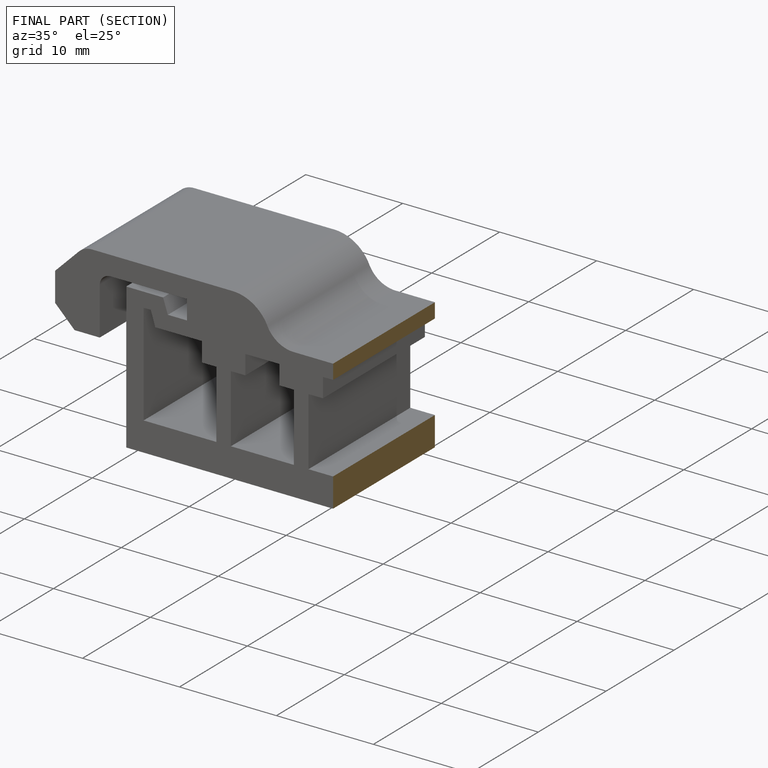
[diagram: finished part — half-section view (interior)]
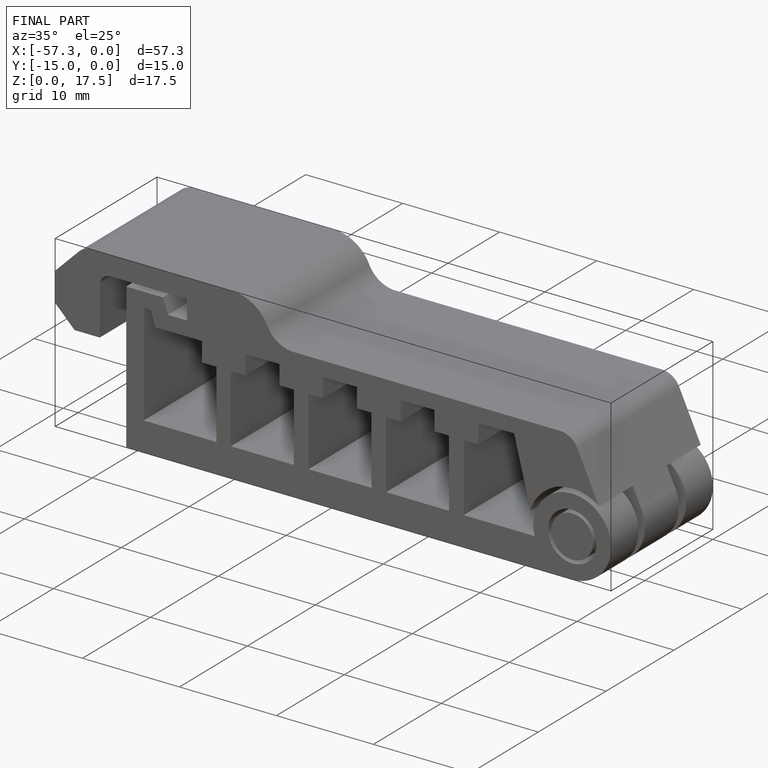
[diagram: finished part — iso view with bounding-box wireframe]
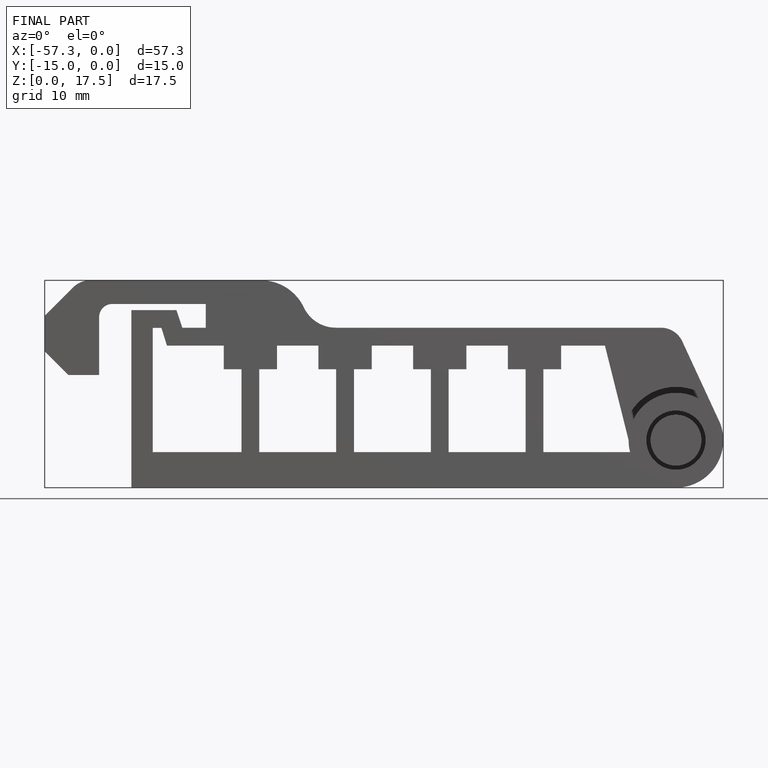
[diagram: finished part — front view with bounding-box wireframe]
